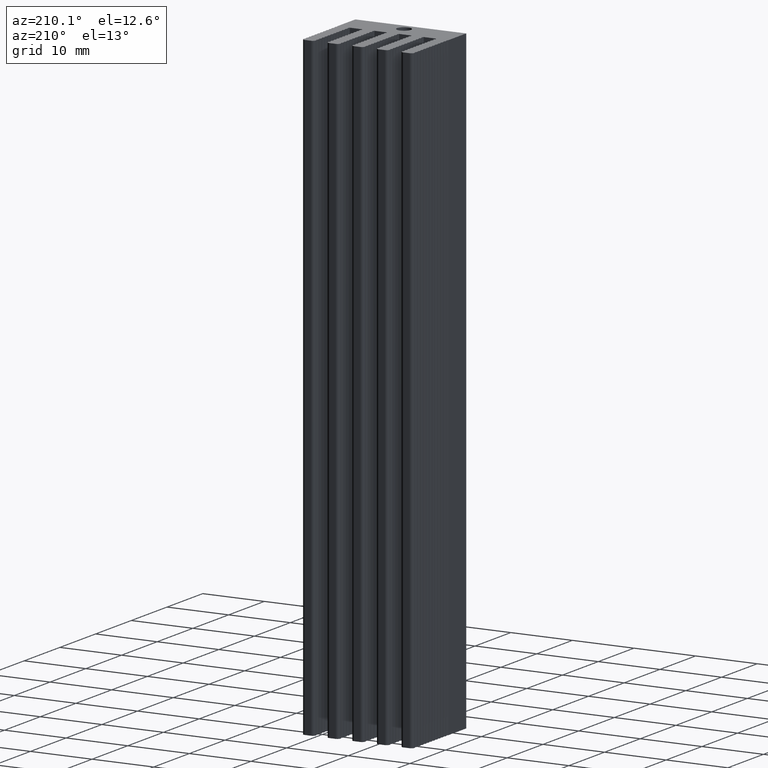
[diagram: clean part render]
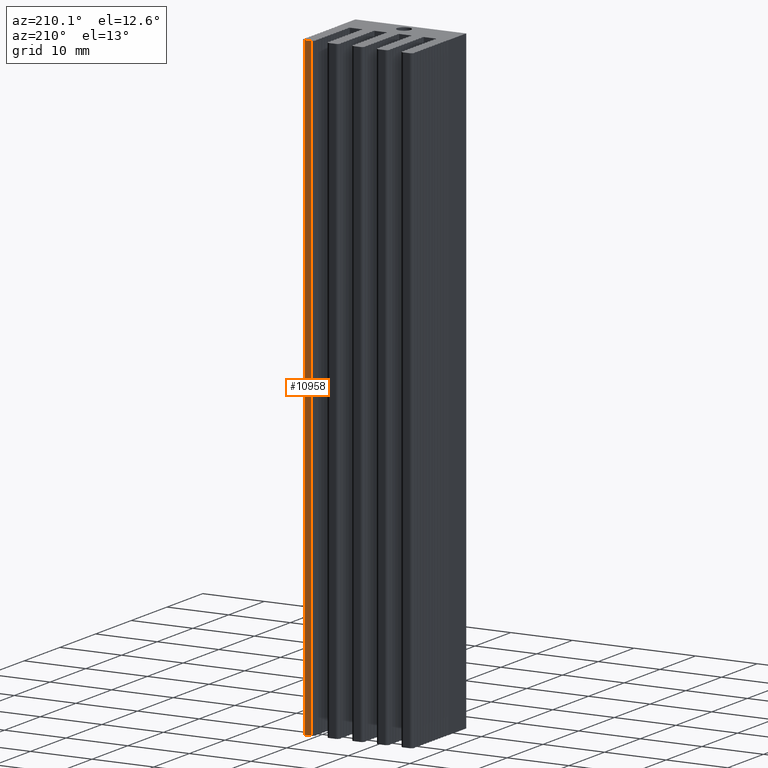
[diagram: same view with one face highlighted and labeled with its STEP entity id]
A machine part, auxiliary view. The second image highlights one B-rep face of the part: STEP entity #10958.
In plain terms, the highlighted planar face has unit normal (0, -1, 0).
Its self-contained STEP definition (entity closure, byte-faithful):
#1158 = VECTOR ( 'NONE', #4656, 1000.000000000000000 ) ;
#2168 = CARTESIAN_POINT ( 'NONE',  ( 0.0000000000000000000, 7.499999999999952038, -50.00000000000000000 ) ) ;
#2229 = DIRECTION ( 'NONE',  ( -1.000000000000000000, 0.0000000000000000000, 0.0000000000000000000 ) ) ;
#2329 = VECTOR ( 'NONE', #16421, 1000.000000000000000 ) ;
#2643 = VERTEX_POINT ( 'NONE', #8996 ) ;
#3411 = ORIENTED_EDGE ( 'NONE', *, *, #5135, .F. ) ;
#4228 = CARTESIAN_POINT ( 'NONE',  ( 8.500000000002255973, 7.499999999999952038, -50.00000000000000000 ) ) ;
#4285 = AXIS2_PLACEMENT_3D ( 'NONE', #4293, #15017, #5844 ) ;
#4293 = CARTESIAN_POINT ( 'NONE',  ( 0.0000000000000000000, 7.499999999999952038, 50.00000000000000000 ) ) ;
#4656 = DIRECTION ( 'NONE',  ( -0.0000000000000000000, -0.0000000000000000000, -1.000000000000000000 ) ) ;
#4987 = EDGE_CURVE ( 'NONE', #8138, #2643, #13356, .T. ) ;
#5135 = EDGE_CURVE ( 'NONE', #10097, #2643, #18642, .T. ) ;
#5630 = CARTESIAN_POINT ( 'NONE',  ( 7.500000000002365219, 7.499999999999952038, 50.00000000000000000 ) ) ;
#5646 = ORIENTED_EDGE ( 'NONE', *, *, #4987, .T. ) ;
#5844 = DIRECTION ( 'NONE',  ( 0.0000000000000000000, -0.0000000000000000000, -1.000000000000000000 ) ) ;
#7487 = ORIENTED_EDGE ( 'NONE', *, *, #7977, .F. ) ;
#7498 = VECTOR ( 'NONE', #11369, 1000.000000000000000 ) ;
#7977 = EDGE_CURVE ( 'NONE', #11844, #10097, #12968, .T. ) ;
#8138 = VERTEX_POINT ( 'NONE', #4228 ) ;
#8996 = CARTESIAN_POINT ( 'NONE',  ( 7.500000000002365219, 7.499999999999952038, -50.00000000000000000 ) ) ;
#9301 = VECTOR ( 'NONE', #2229, 1000.000000000000000 ) ;
#9947 = CARTESIAN_POINT ( 'NONE',  ( 8.500000000002255973, 7.499999999999952038, 50.00000000000000000 ) ) ;
#10097 = VERTEX_POINT ( 'NONE', #12483 ) ;
#10753 = CARTESIAN_POINT ( 'NONE',  ( 8.500000000002255973, 7.499999999999952038, 50.00000000000000000 ) ) ;
#10958 = ADVANCED_FACE ( 'NONE', ( #19396 ), #13480, .F. ) ;
#11369 = DIRECTION ( 'NONE',  ( -1.000000000000000000, 0.0000000000000000000, 0.0000000000000000000 ) ) ;
#11844 = VERTEX_POINT ( 'NONE', #9947 ) ;
#12483 = CARTESIAN_POINT ( 'NONE',  ( 7.500000000002365219, 7.499999999999952038, 50.00000000000000000 ) ) ;
#12968 = LINE ( 'NONE', #15954, #7498 ) ;
#13356 = LINE ( 'NONE', #2168, #9301 ) ;
#13480 = PLANE ( 'NONE',  #4285 ) ;
#13523 = ORIENTED_EDGE ( 'NONE', *, *, #15780, .T. ) ;
#14319 = LINE ( 'NONE', #10753, #1158 ) ;
#15017 = DIRECTION ( 'NONE',  ( 0.0000000000000000000, -1.000000000000000000, 0.0000000000000000000 ) ) ;
#15773 = EDGE_LOOP ( 'NONE', ( #5646, #3411, #7487, #13523 ) ) ;
#15780 = EDGE_CURVE ( 'NONE', #11844, #8138, #14319, .T. ) ;
#15954 = CARTESIAN_POINT ( 'NONE',  ( 0.0000000000000000000, 7.499999999999952038, 50.00000000000000000 ) ) ;
#16421 = DIRECTION ( 'NONE',  ( -0.0000000000000000000, -0.0000000000000000000, -1.000000000000000000 ) ) ;
#18642 = LINE ( 'NONE', #5630, #2329 ) ;
#19396 = FACE_OUTER_BOUND ( 'NONE', #15773, .T. ) ;